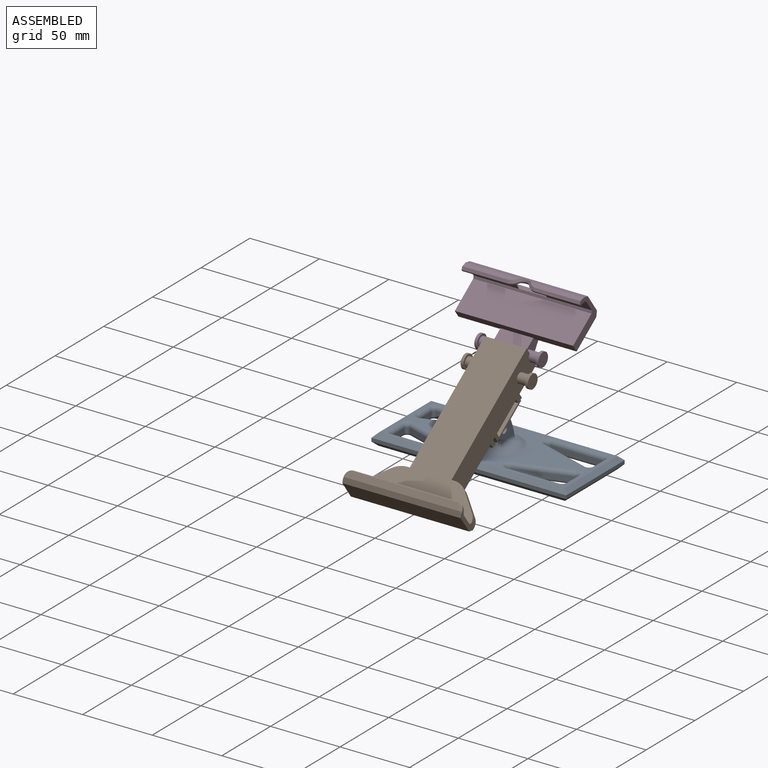
[diagram: assembled view]
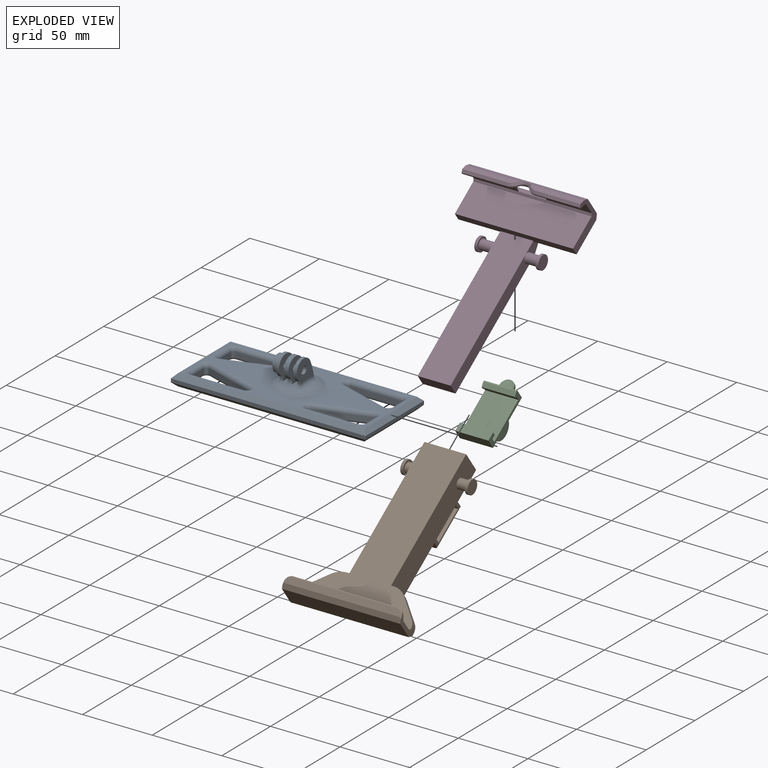
[diagram: exploded view]
GUIDED TOUR — MATED ASSEMBLY (Onshape document 6f7dac8b91ac433c8a3b1eba, AutoMate assembly 6f7dac8b91ac433c8a3b1eba_17312025907f238a595eb471_8597153686b4f1843fef9cae_default)

This assembly has 4 components, labeled P0..P3 below (a component is one placed occurrence of a part; the same part can appear more than once), held together by 2 mates. A mate is a constraint between two components; its type names the relative motion it leaves free:
  FASTENED — locks the two components together rigidly (no relative motion),
  REVOLUTE — leaves rotation about the listed axis free (a hinge).
Axis/direction vectors are unit vectors and 'through' points are millimeter coordinates, both in the assembly's world frame.

MATES
  1. REVOLUTE "Revolute 1": P2 <-> P0, axis (1.000, 0.000, 0.000) through (12.66, -9.81, 21.82) mm
  2. FASTENED "Fastened 1": P2 <-> P1, direction (0.000, 0.810, 0.587) through (7.91, -28.19, 22.88) mm

ASSEMBLY ORDER
  1. P2 — the base component [order heuristic]
  2. P0 — core [order heuristic]
  3. P1 — core [order heuristic]
  4. P3 [order verified]
Order-tag legend:
  [order verified] — this step's position reverses a verified removal order: the component was checked to insert without passing through the ones already placed.
  [order heuristic] — the first 3 components form the assembly's core: parts whose collision-free extraction could not be verified, listed in mate-graph order.

Of the 4 components, 1 carries the full construction recipe — the FeatureScript program that regenerates the part's solid from scratch; the rest are supplied as boundary geometry only.
Each toured component is shown spotlighted twice — in the assembled view, then in the exploded view, where a leader line traces a displaced component back to its assembled socket (saturated green if recipe-attached, orange if geometry-only; every other component desaturated gray) — followed by its recipe or geometry summary and the mates that hold it.
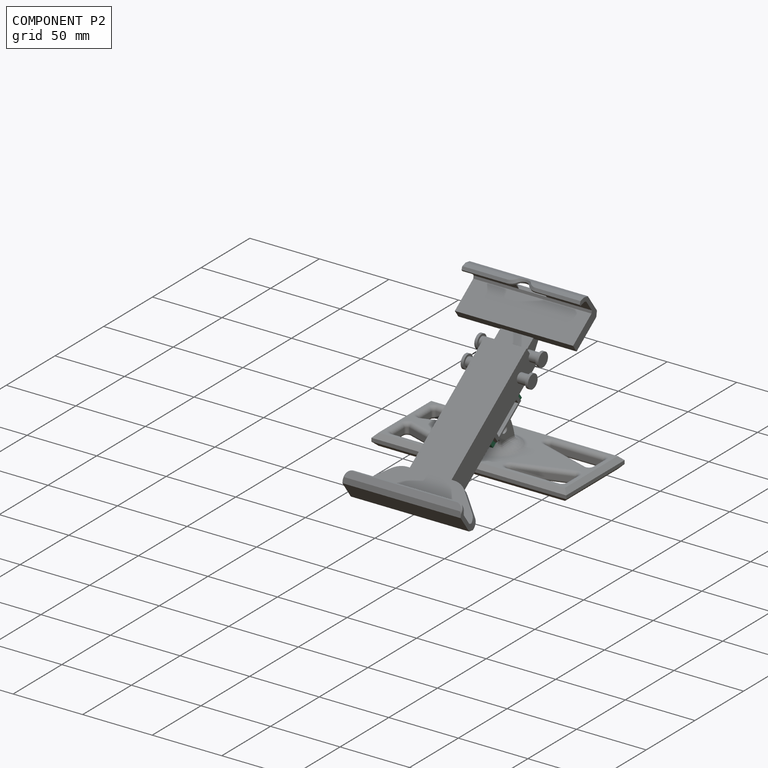
[diagram: component P2 — assembled]
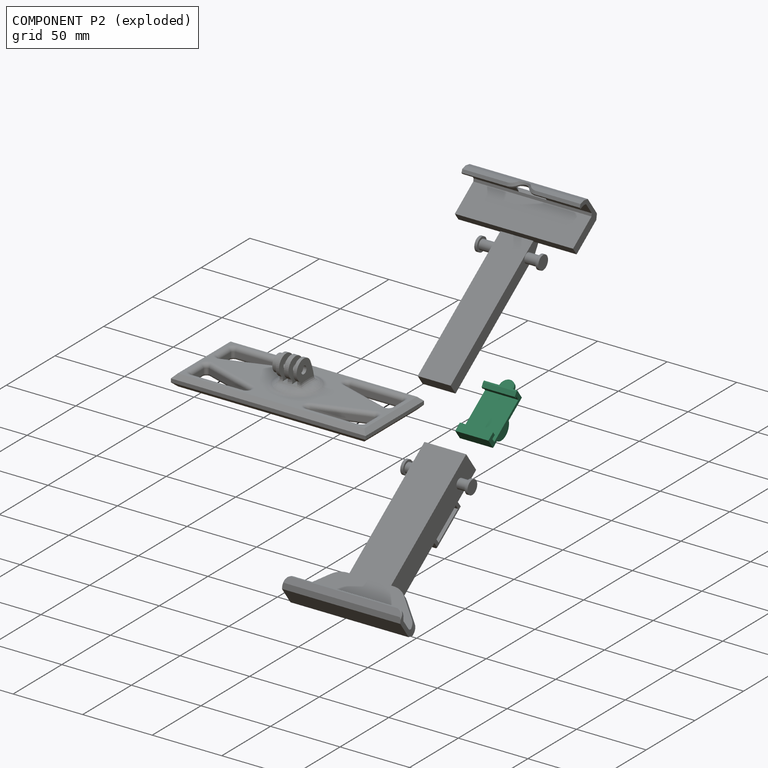
[diagram: component P2 — exploded]
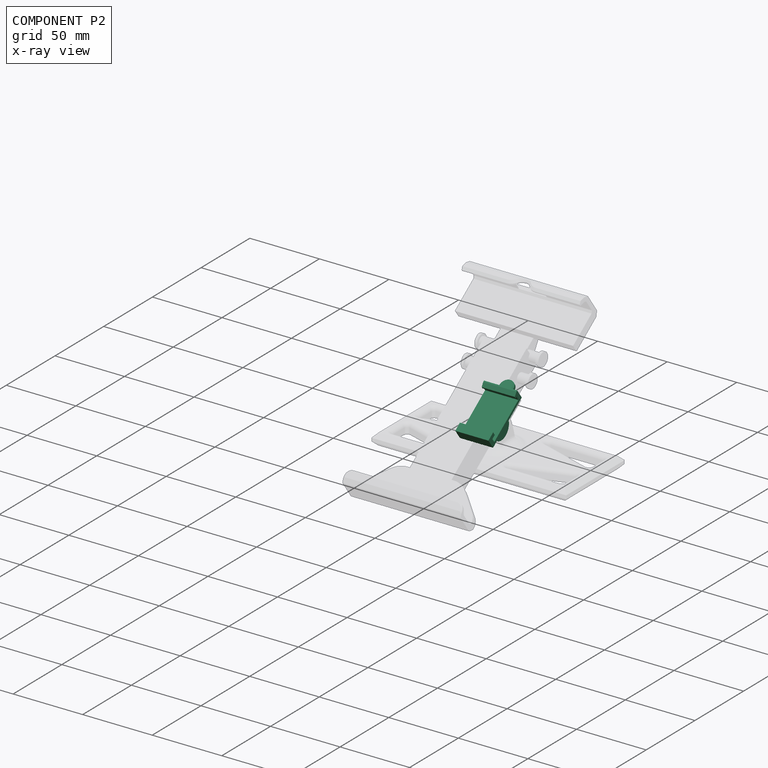
[diagram: component P2 — x-ray view]
COMPONENT P2 — recipe-attached (CADFS 00870001, mesh-verified: the recipe's output STEP matches this component's geometry to below the mesh-comparison resolution (tessellation chordal tolerance ~0.0839 mm)).
Held by: REVOLUTE mate "Revolute 1" to P0; FASTENED mate "Fastened 1" to P1.
Construction recipe (FeatureScript — the CAD program that rebuilds this solid; sketch coordinates are in the units given by the * unit suffixes, e.g. mm):

FeatureScript 1511;
import(path : "onshape/std/geometry.fs", version : "1511.0");
import(path : "onshape/std/common.fs", version : "1511.0");
const mm = millimeter;
const VERTEX = EntityType.VERTEX;
const EDGE = EntityType.EDGE;
const FACE = EntityType.FACE;
const BODY = EntityType.BODY;
function v(x, y){return vector(x, y);}
function OD(order){return orderDisambiguation(order);}
function OSD(set){return originalSetDisambiguation(set);}
function TD(topology){return topologyDisambiguation(topology);}
function TDD(query){return trueDependencyDisambiguation(query);}
function sQuery(a, b, c) {return sketchEntityQuery(a, b, c);}

annotation { "Feature Type Name" : "Feature", "Feature Type Description" : "" }
export const myFeature = defineFeature(function(context is Context, id is Id, definition is map)
    precondition{}
    {
        {
            var Q0;
            Q0=qCreatedBy(makeId("Front.planeOp"),FACE);
            var sketch = newSketch(context, id + "F0", { "sketchPlane" : qUnion([Q0])});
            skLineSegment(sketch, "E0", {"start": v(-12.25, 1.65) * mm, "end": v(-12.25, 4.45) * mm});
            skLineSegment(sketch, "E1", {"start": v(-12.25, 4.45) * mm, "end": v(-18.25, 4.45) * mm});
            skLineSegment(sketch, "E2", {"start": v(-18.25, 4.45) * mm, "end": v(-18.25, -3.65) * mm});
            skLineSegment(sketch, "E3", {"start": v(-18.25, -3.65) * mm, "end": v(18.25, -3.65) * mm});
            skLineSegment(sketch, "E4", {"start": v(18.25, -3.65) * mm, "end": v(18.25, 4.45) * mm});
            skLineSegment(sketch, "E5", {"start": v(14.25, 3.15) * mm, "end": v(14.25, 1.65) * mm});
            skLineSegment(sketch, "E6", {"start": v(15.25, 1.65) * mm, "end": v(15.25, -1.65) * mm});
            skLineSegment(sketch, "E7", {"start": v(15.25, -1.65) * mm, "end": v(-15.25, -1.65) * mm});
            skLineSegment(sketch, "E8", {"start": v(-15.25, -1.65) * mm, "end": v(-15.25, 1.65) * mm});
            skLineSegment(sketch, "E9", {"start": v(-15.25, 1.65) * mm, "end": v(-12.25, 1.65) * mm});
            skLineSegment(sketch, "E10", {"start": v(14.25, 1.65) * mm, "end": v(15.25, 1.65) * mm});
            skLineSegment(sketch, "E11", {"start": v(17.25, 4.45) * mm, "end": v(18.25, 4.45) * mm});
            skLineSegment(sketch, "E12", {"start": v(17.25, 4.45) * mm, "end": v(14.25, 3.15) * mm});
            skSolve(sketch);
        }
        {
            var Q0;
            Q0 = qSketchRegion(id + "F0", true);
            extrude(context, id + "F1", {"entities" : qUnion([Q0]), "endBound" : BoundingType.SYMMETRIC, "depth" : 23.9 * mm, "offsetDistance" : 25 * mm});
        }
        {
            var Q0;
            Q0=qCreatedBy(makeId("Front.planeOp"),FACE);
            var sketch = newSketch(context, id + "F2", { "sketchPlane" : qUnion([Q0])});
            skLineSegment(sketch, "E13", {"start": v(-9, -11.65) * mm, "end": v(-9, -3.65) * mm});
            skLineSegment(sketch, "E14", {"start": v(-9, -3.65) * mm, "end": v(9, -3.65) * mm});
            skLineSegment(sketch, "E15", {"start": v(9, -3.65) * mm, "end": v(6.8, -13.4) * mm});
            skArc(sketch, "E16", {"start": v(-9, -11.65) * mm, "mid": v(-1.88, -19.6) * mm, "end": v(6.8, -13.4) * mm});
            skCircle(sketch, "E17", {"center": v(-1, -11.65) * mm, "radius": 2.5 * mm});
            skSolve(sketch);
        }
        {
            var Q0;
            Q0=makeQuery(id+"F2.imprint","IMPRINT",FACE,{"disambiguationData":[TD([[makeQuery(id+"F2.imprint","IMPRINT",EDGE,{"derivedFrom":sQuery(id+"F2.wireOp",EDGE,"E13")}),-1.0]])]});
            extrude(context, id + "F3", {"entities" : qUnion([Q0]), "operationType" : NewBodyOperationType.ADD, "endBound" : BoundingType.SYMMETRIC, "depth" : 9.5 * mm, "offsetDistance" : 25 * mm});
        }
        {
            var Q0;
            Q0=qCreatedBy(makeId("Right.planeOp"),FACE);
            var sketch = newSketch(context, id + "F4", { "sketchPlane" : qUnion([Q0])});
            skLineSegment(sketch, "E18.bottom", {"start": v(1.75, -25.65) * mm, "end": v(-1.75, -25.65) * mm});
            skLineSegment(sketch, "E18.top", {"start": v(1.75, -3.65) * mm, "end": v(-1.75, -3.65) * mm});
            skLineSegment(sketch, "E18.left", {"start": v(1.75, -25.65) * mm, "end": v(1.75, -3.65) * mm});
            skLineSegment(sketch, "E18.right", {"start": v(-1.75, -25.65) * mm, "end": v(-1.75, -3.65) * mm});
            skSolve(sketch);
        }
        {
            var Q0;
            Q0 = qSketchRegion(id + "F4", true);
            extrude(context, id + "F5", {"entities" : qUnion([Q0]), "operationType" : NewBodyOperationType.REMOVE, "endBound" : BoundingType.SYMMETRIC, "depth" : 25 * mm, "offsetDistance" : 25 * mm});
        }
        {
            var Q0;
            Q0=makeQuery(id+"F5.boolean.opBoolean","MERGE",FACE,{"derivedFrom":[makeQuery(id+"F1.opExtrude","SWEPT_FACE",FACE,{"disambiguationData":[OSD([sQuery(id+"F0.wireOp",EDGE,"E3")])]}),makeQuery(id+"F5.opExtrude","SWEPT_FACE",FACE,{"disambiguationData":[OSD([sQuery(id+"F4.wireOp",EDGE,"E18.top")])]})]});
            var sketch = newSketch(context, id + "F6", { "sketchPlane" : qUnion([Q0])});
            skLineSegment(sketch, "E19.bottom", {"start": v(18.25, -5) * mm, "end": v(21.25, -5) * mm});
            skLineSegment(sketch, "E19.top", {"start": v(18.25, 5) * mm, "end": v(21.25, 5) * mm});
            skLineSegment(sketch, "E19.left", {"start": v(18.25, -5) * mm, "end": v(18.25, 5) * mm});
            skLineSegment(sketch, "E19.right", {"start": v(21.25, -5) * mm, "end": v(21.25, 5) * mm});
            skArc(sketch, "E20", {"start": v(21.25, -5) * mm, "mid": v(26.25, 0) * mm, "end": v(21.25, 5) * mm});
            skSolve(sketch);
        }
        {
            var Q0;
            Q0 = qSketchRegion(id + "F6", true);
            extrude(context, id + "F7", {"entities" : qUnion([Q0]), "operationType" : NewBodyOperationType.ADD, "oppositeDirection" : true, "depth" : 3 * mm, "offsetDistance" : 25 * mm});
        }
        {
            var Q0;
            Q0=makeQuery(id+"F7.opExtrude","CAP_EDGE",EDGE,{"disambiguationData":[OSD([sQuery(id+"F6.wireOp",EDGE,"E20")])],"isStart":false});
            chamfer(context, id + "F8", {"entities" : qUnion([Q0]), "width" : 1 * mm, "tangentPropagation" : true});
        }
    });
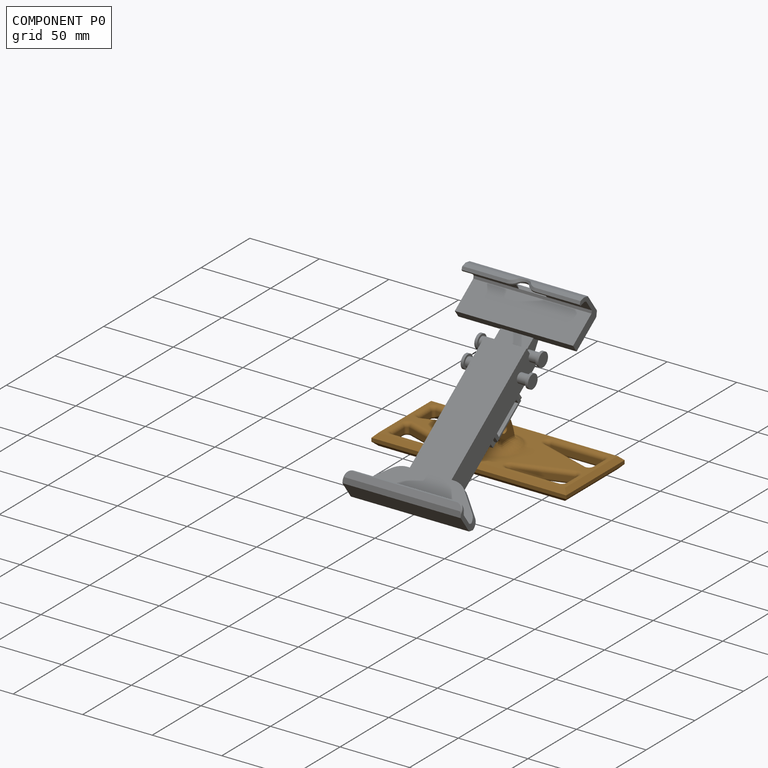
[diagram: component P0 — assembled]
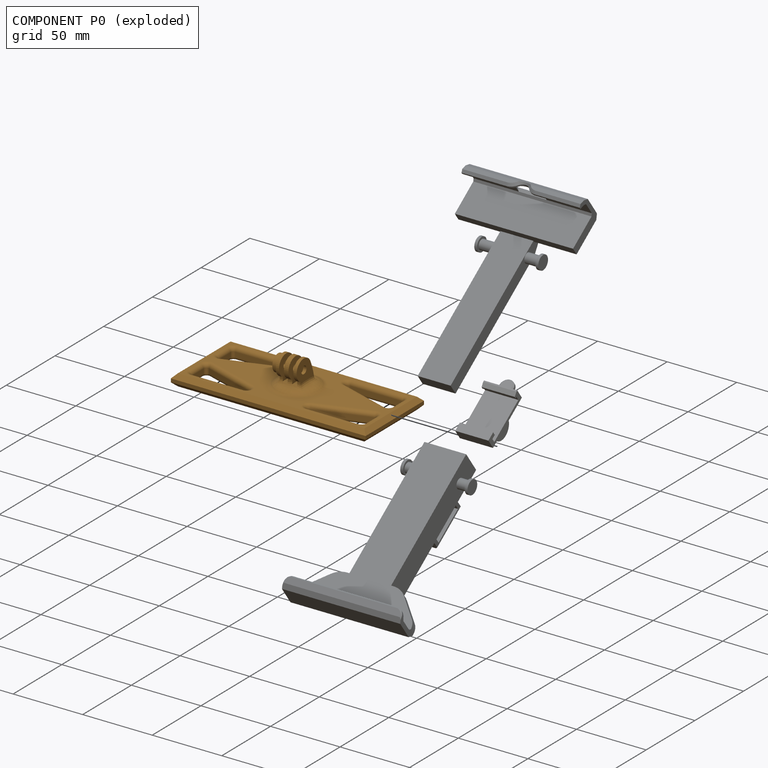
[diagram: component P0 — exploded]
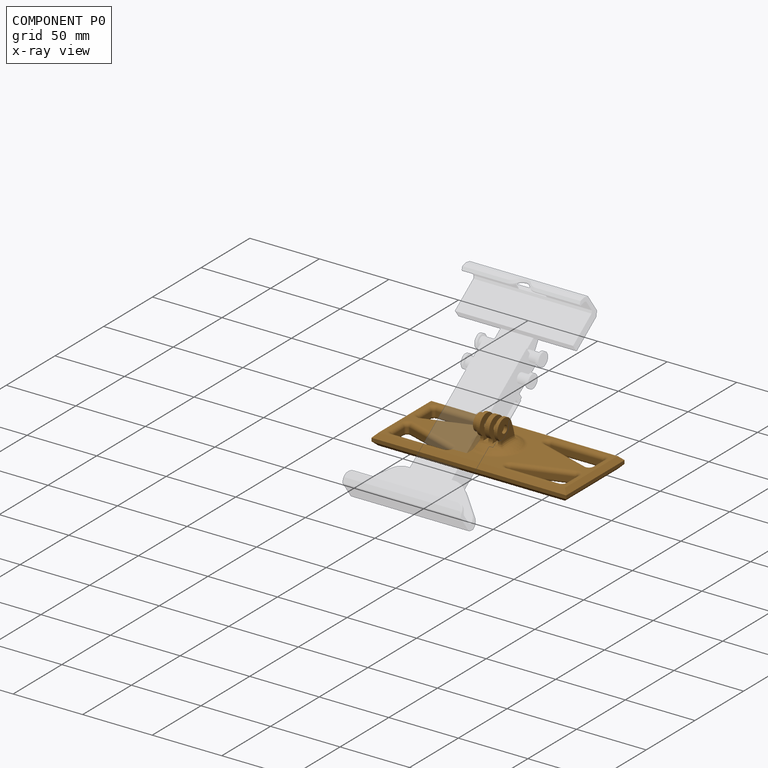
[diagram: component P0 — x-ray view]
COMPONENT P0 — geometry summary (no construction recipe available for this part):
  bounding box: 140.1 x 60.1 x 29.4 mm
  B-rep topology: 1 solid, 121 faces, 602 edges
  volume: 56357 mm^3 (23% of its bounding box)
Held by: REVOLUTE mate "Revolute 1" to P2.
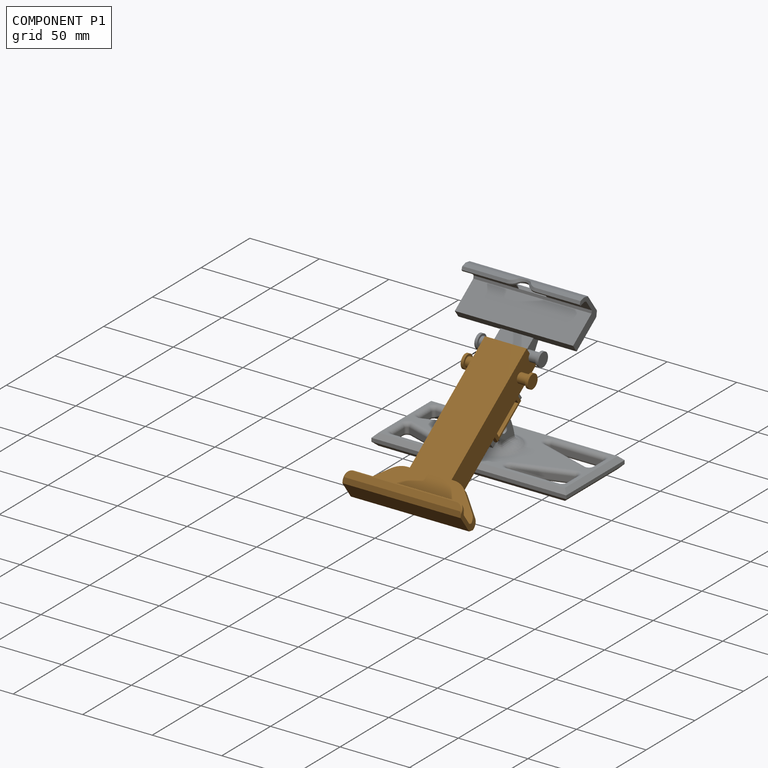
[diagram: component P1 — assembled]
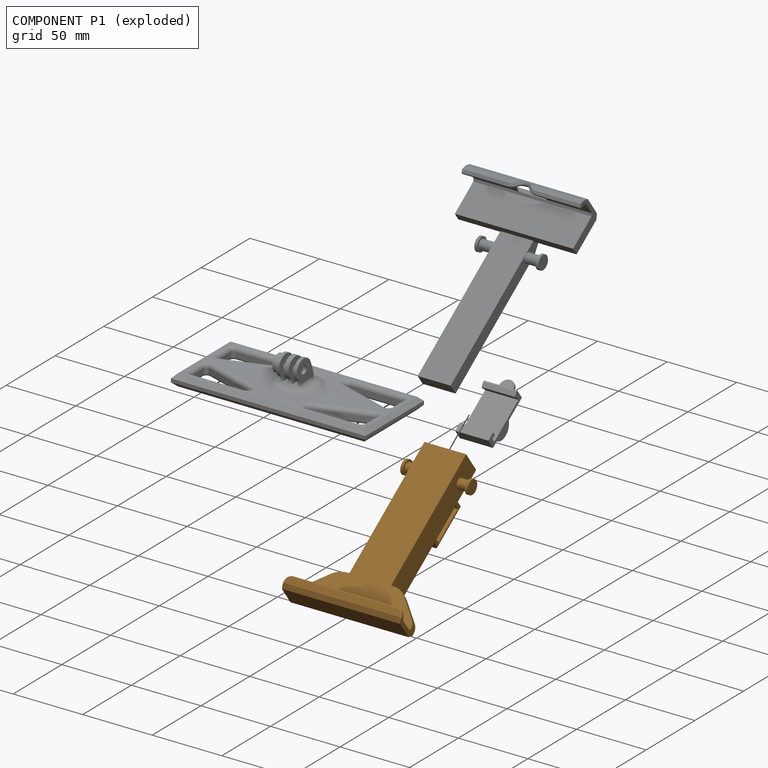
[diagram: component P1 — exploded]
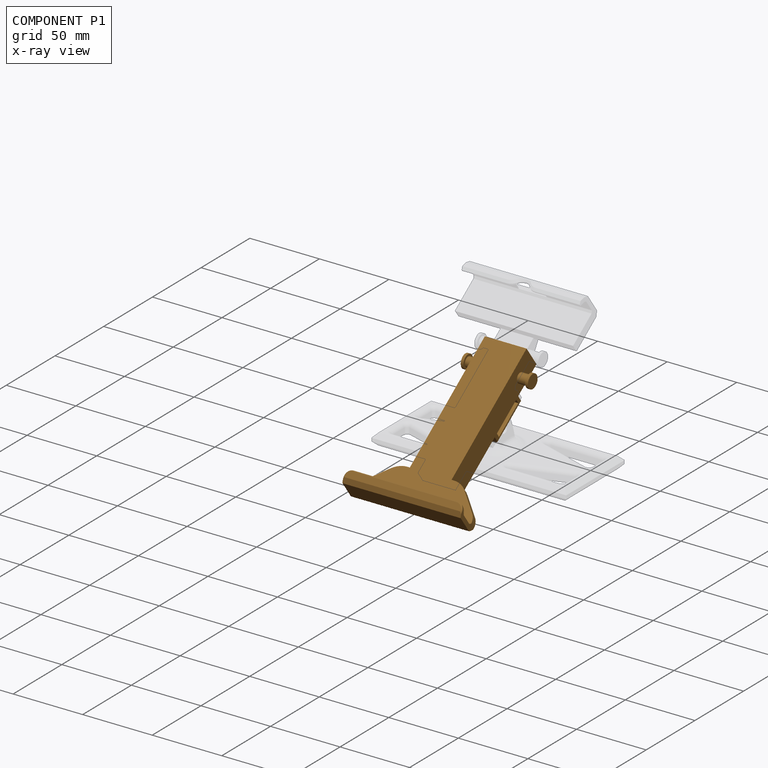
[diagram: component P1 — x-ray view]
COMPONENT P1 — geometry summary (no construction recipe available for this part):
  bounding box: 123.6 x 85.6 x 41.6 mm
  B-rep topology: 1 solid, 66 faces, 360 edges
  volume: 51248 mm^3 (12% of its bounding box)
Held by: FASTENED mate "Fastened 1" to P2.
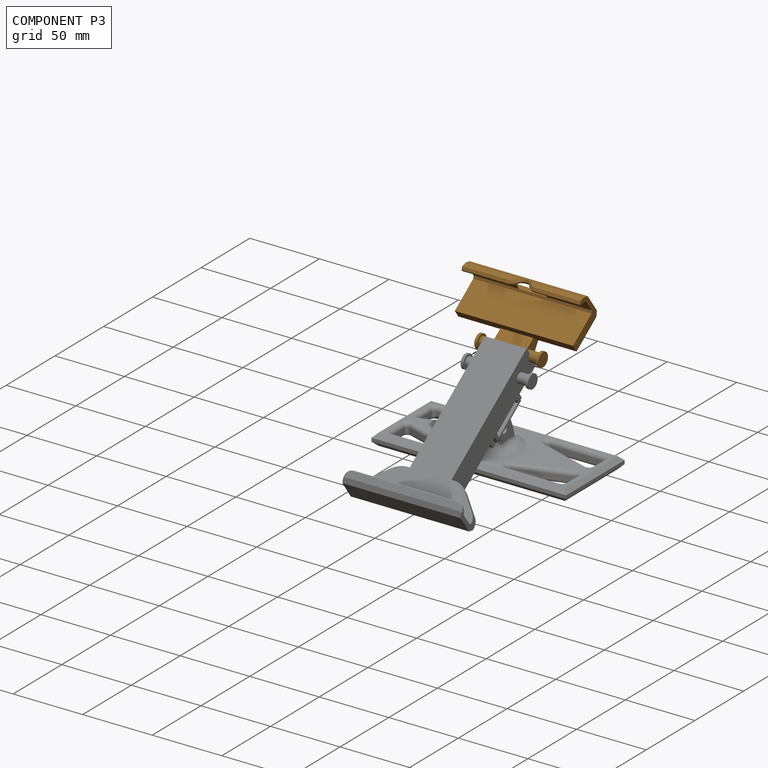
[diagram: component P3 — assembled]
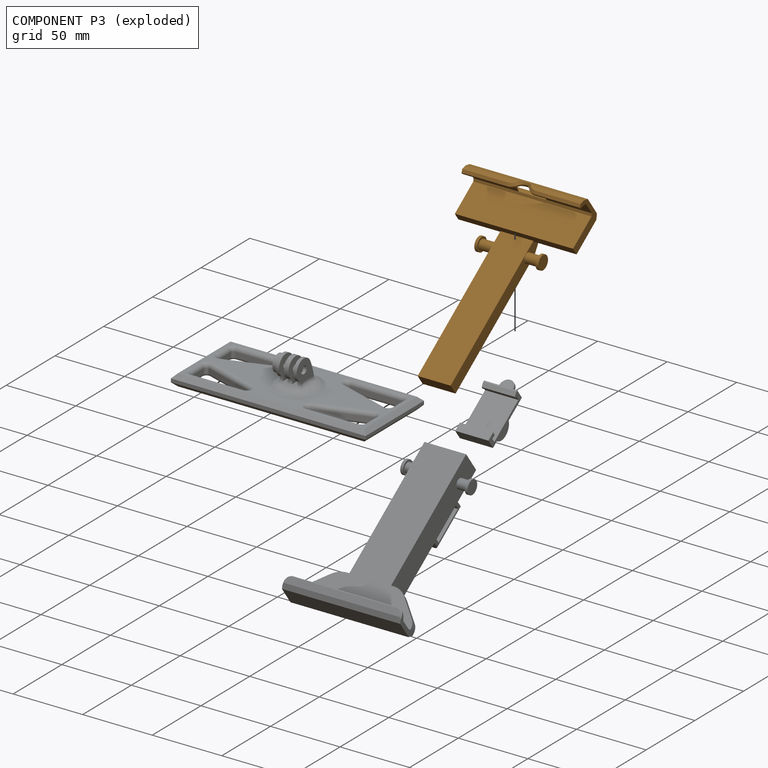
[diagram: component P3 — exploded]
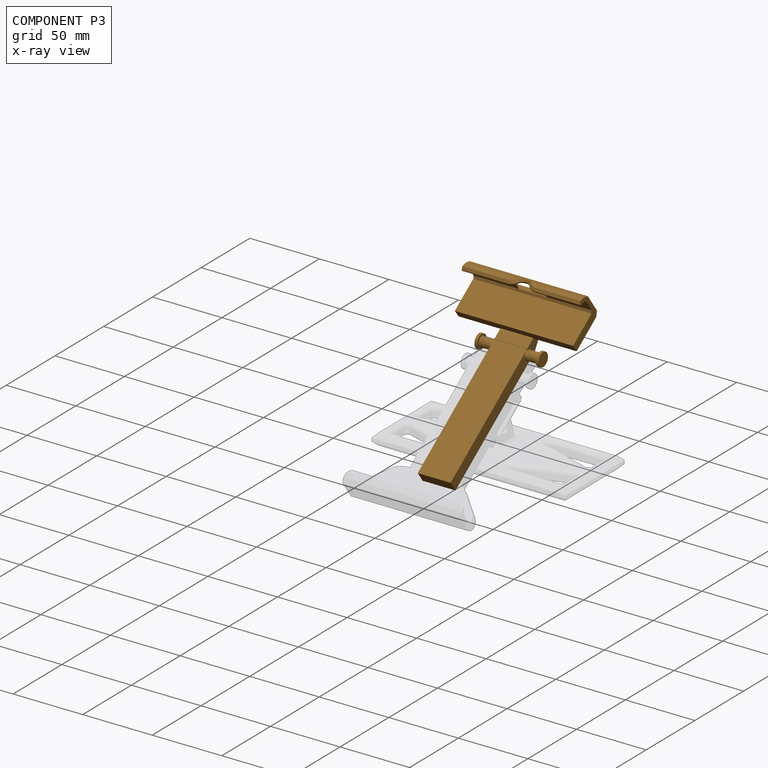
[diagram: component P3 — x-ray view]
COMPONENT P3 — geometry summary (no construction recipe available for this part):
  bounding box: 133.4 x 85.5 x 31.1 mm
  B-rep topology: 1 solid, 47 faces, 240 edges
  volume: 41504 mm^3 (12% of its bounding box)
  symmetry: mirror-symmetric across its y mid-plane
Held by: no mates (free).
PROVENANCE & LICENSES
Assembly (occurrences, transforms, mates, per-part STEP geometry): AutoMate dataset, Zenodo record 7776208, CC0.
Construction recipes: CADFS (HuggingFace VladPyatov/CADFS, CC-BY-4.0, layered over the ABC dataset), FeatureScript reconstruction programs keyed by ABC model id.
Join: ABC meta listings map ABC model id -> Onshape documentId; within a shared document, parts are matched by geometric signature (bounding-box dims + volume at 0.1% relative tolerance, exact B-rep face/solid counts).
Verification: 1 of this assembly's 4 components carries a recipe attachment, and every attachment is mesh-verified: the CADFS STEP and the AutoMate member STEP were compared as meshes in their shared local frame (symmetric sampled-point-to-mesh distance); worst across the 1 attachment: below the mesh-comparison resolution (tessellation chordal tolerance ~0.0839 mm) on a 56 mm part.
Renders: orthographic iso camera (az 35 / el 25); the floor grid conveys scale (grid pitch printed in each image; no ruler). In the exploded view each component is displaced by its stored offset vector: the offsets alone carry the explosion direction (mate normal/axis signs are not orientation cues and do not encode it), and separation distances are assigned per mate-chain, not proportionally to assembly-order depth.
